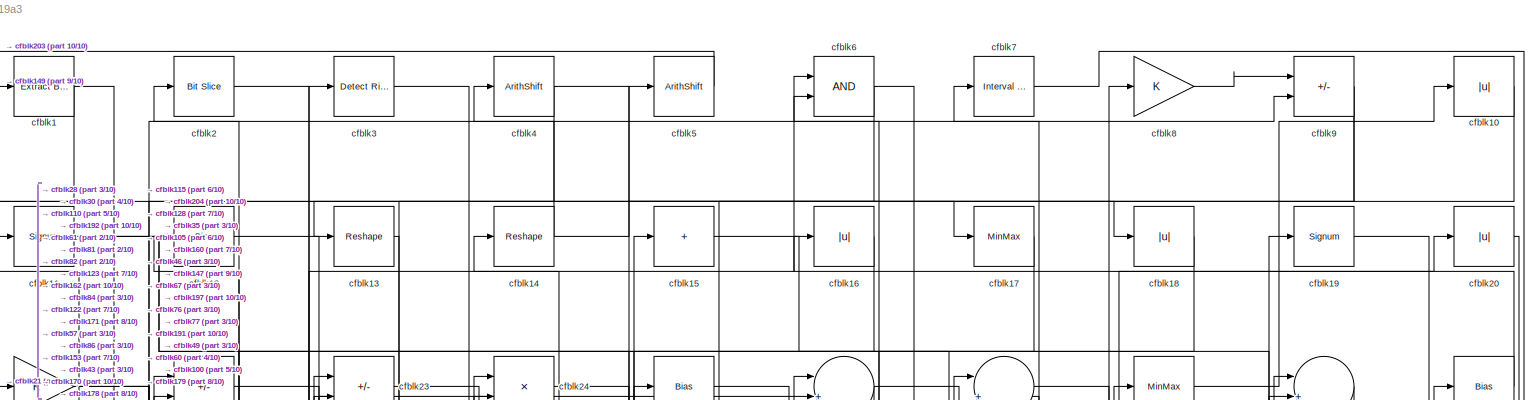
[diagram: root canvas - part 1/10, full width, top band]
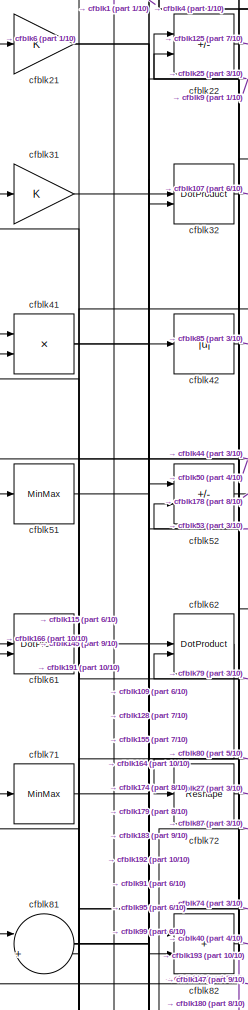
[diagram: root canvas - part 2/10, top left region]
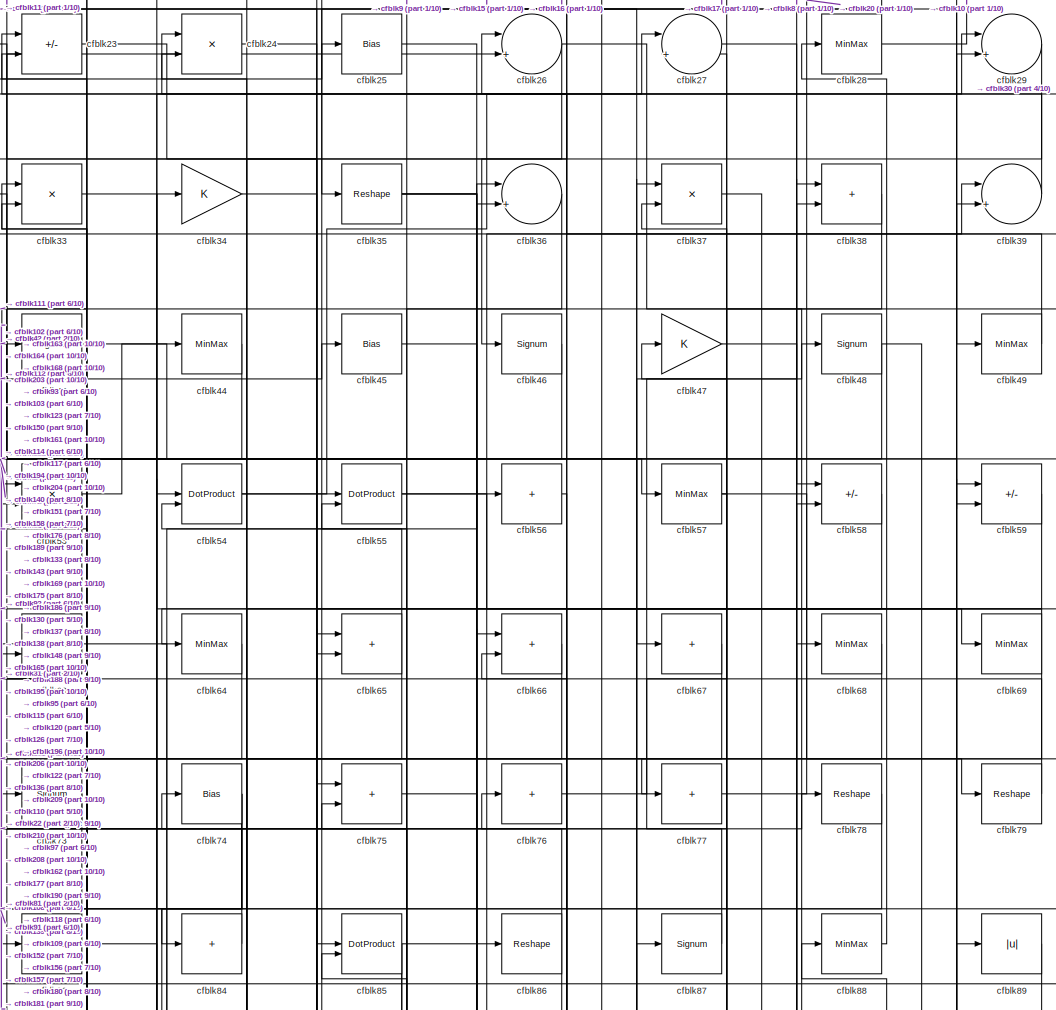
[diagram: root canvas - part 3/10, top center region]
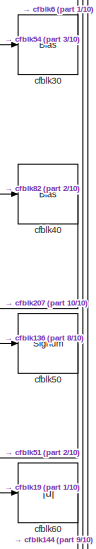
[diagram: root canvas - part 4/10, top right region]
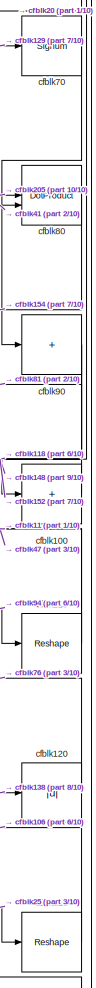
[diagram: root canvas - part 5/10, middle right region]
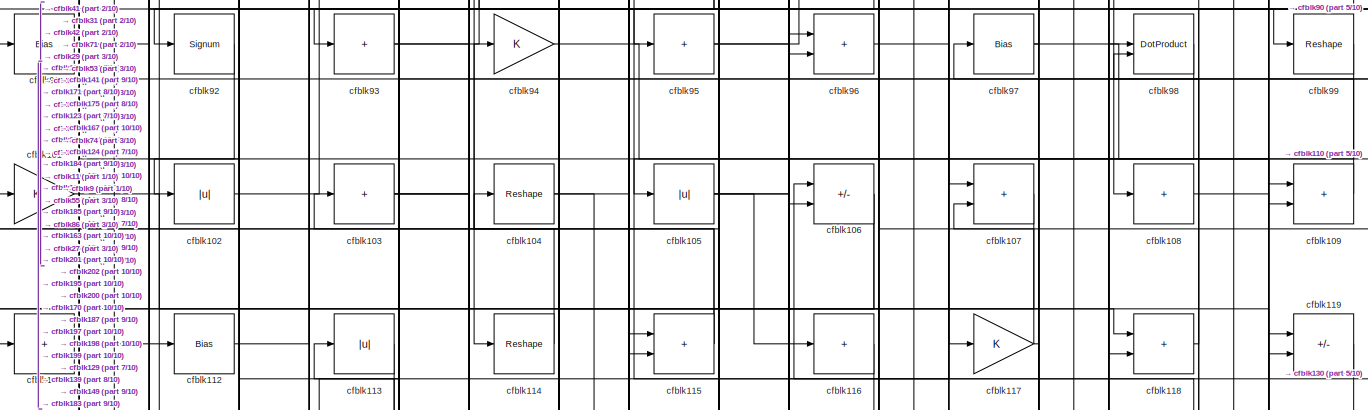
[diagram: root canvas - part 6/10, full width, middle band]
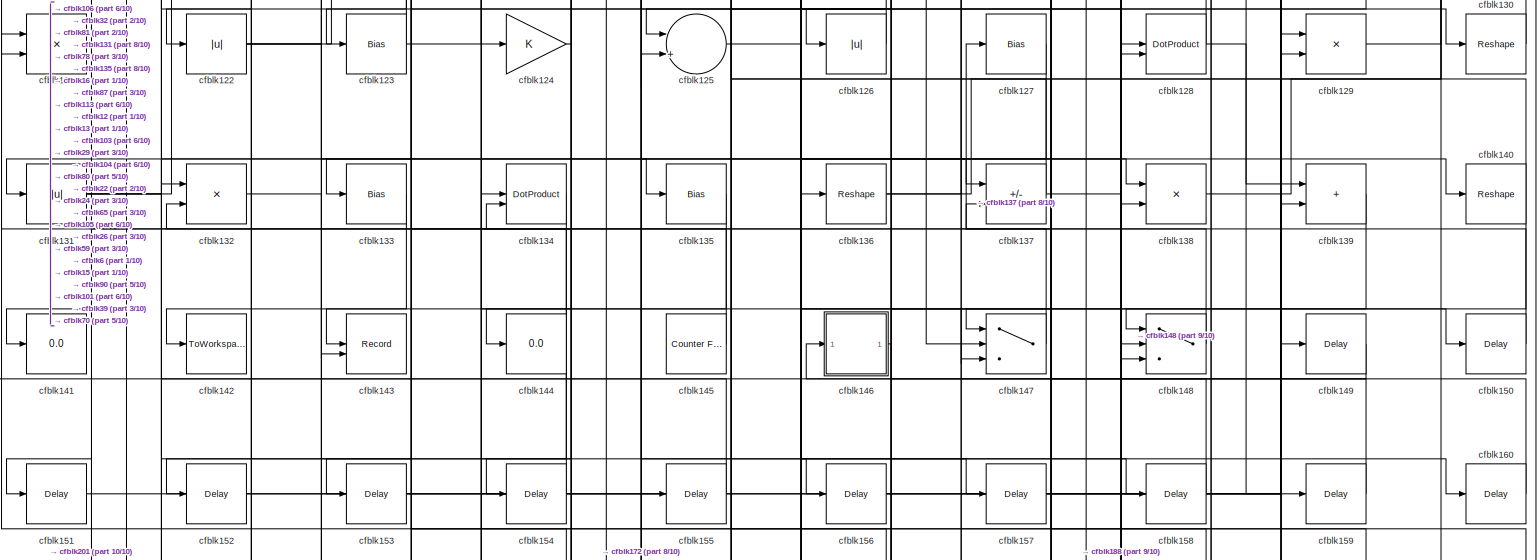
[diagram: root canvas - part 7/10, full width, bottom band]
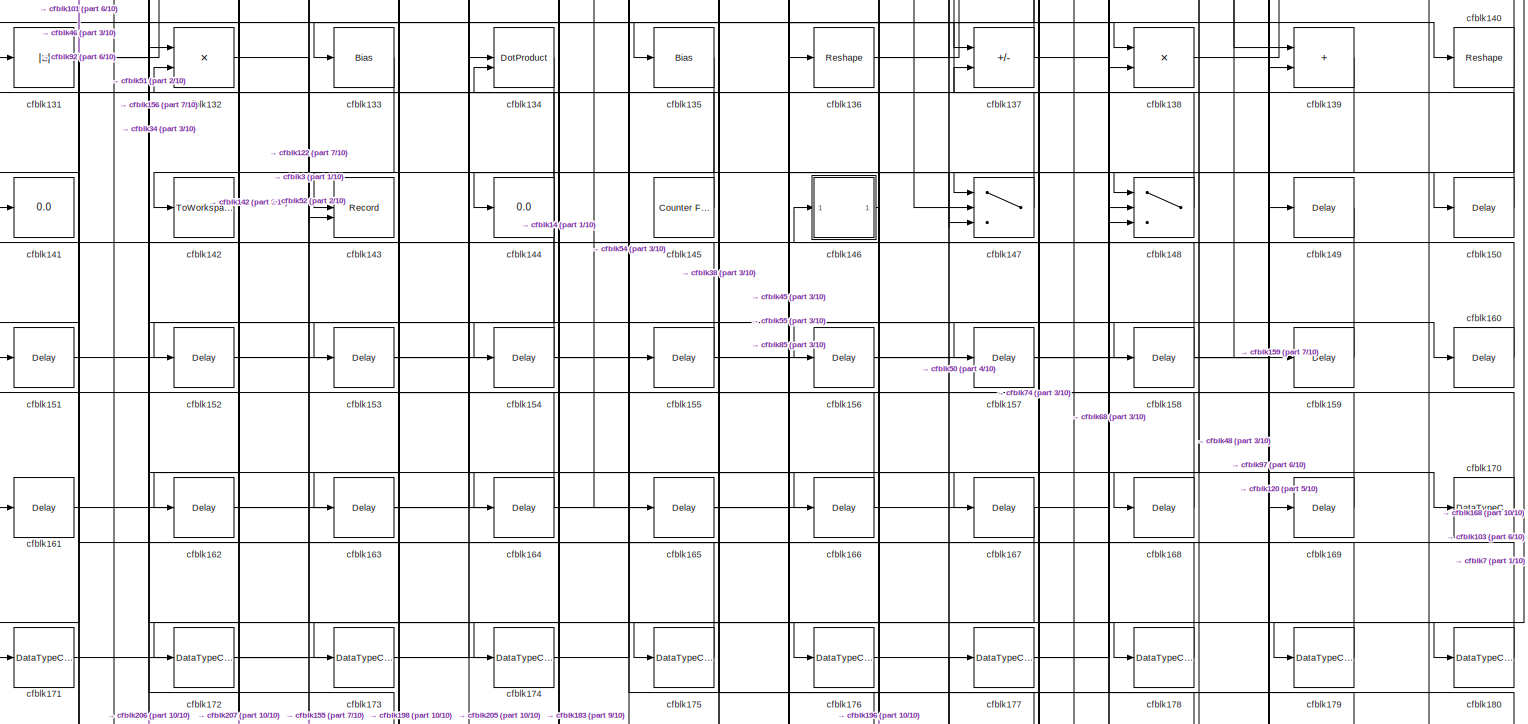
[diagram: root canvas - part 8/10, full width, bottom band]
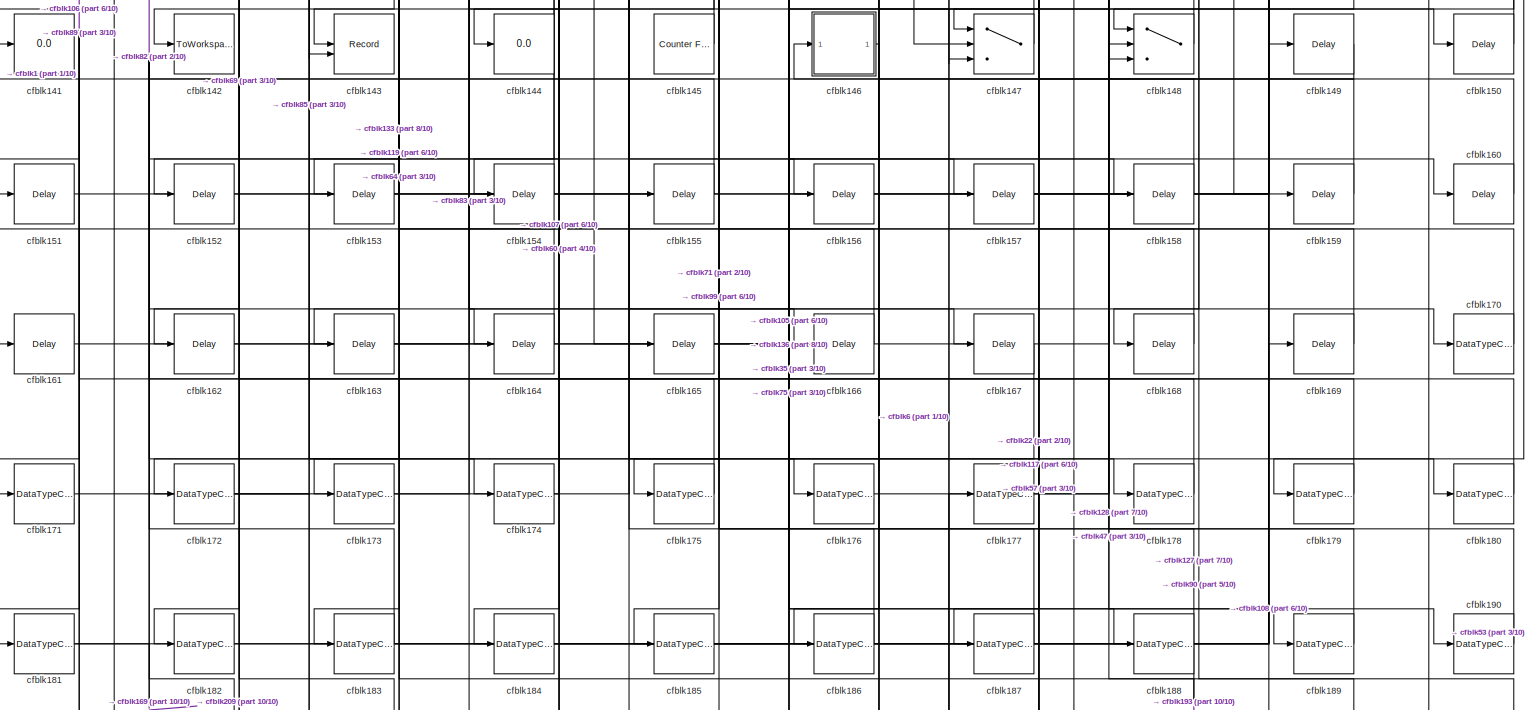
[diagram: root canvas - part 9/10, full width, bottom band]
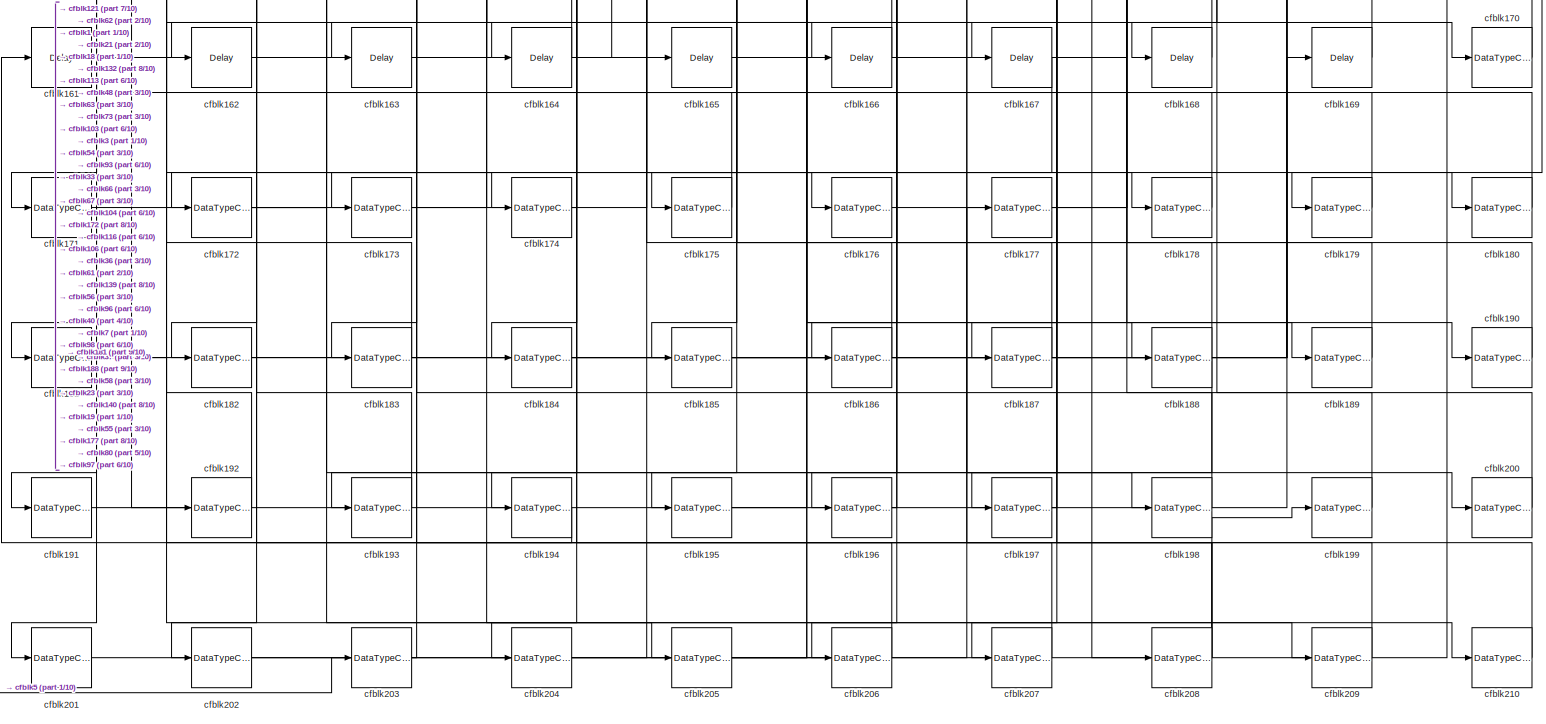
[diagram: root canvas - part 10/10, full width, bottom band]
MODEL slx_aa4a336919a3
KIND model
CONFIG AbsTol = auto
CONFIG EnableMultiTasking = off
CONFIG FixedStep = auto
CONFIG MaxStep = auto
CONFIG MinStep = auto
CONFIG RelTol = 1e-3
CONFIG SampleTimeConstraint = Unconstrained
CONFIG SolverName = VariableStepAuto
CONFIG StartTime = 0.0
CONFIG StopTime = 10.0
BLOCK [Reference] cfblk1  REF=simulink/Logic and Bit
Operations/Extract Bits
  LibrarySourceBlock = hdlsllib/Logic and Bit\nOperations/Extract Bits
  SourceBlock = simulink/Logic and Bit\nOperations/Extract Bits
  SourceType = Extract Bits
BLOCK [Abs] cfblk10
  SaturateOnIntegerOverflow = off
BLOCK [Sum] cfblk100
  IconShape = rectangular
  Inputs = +
BLOCK [Gain] cfblk101
BLOCK [Abs] cfblk102
  SaturateOnIntegerOverflow = off
BLOCK [Sum] cfblk103
  IconShape = rectangular
  Inputs = +
BLOCK [Reshape] cfblk104
BLOCK [Abs] cfblk105
  SaturateOnIntegerOverflow = off
BLOCK [Sum] cfblk106
  IconShape = rectangular
  Inputs = +-
BLOCK [Sum] cfblk107
  IconShape = rectangular
BLOCK [Sum] cfblk108
  IconShape = rectangular
  Inputs = +
BLOCK [Sum] cfblk109
  IconShape = rectangular
BLOCK [Signum] cfblk11
BLOCK [Reshape] cfblk110
BLOCK [Sum] cfblk111
  IconShape = rectangular
  Inputs = +
BLOCK [Bias] cfblk112
  Bias = 0.0
  SaturateOnIntegerOverflow = off
BLOCK [Abs] cfblk113
  SaturateOnIntegerOverflow = off
BLOCK [Reshape] cfblk114
BLOCK [Sum] cfblk115
  IconShape = rectangular
BLOCK [Sum] cfblk116
  IconShape = rectangular
  Inputs = +
BLOCK [Gain] cfblk117
BLOCK [Sum] cfblk118
  IconShape = rectangular
BLOCK [Sum] cfblk119
  IconShape = rectangular
  Inputs = +-
BLOCK [Bias] cfblk12
  Bias = 0.0
  SaturateOnIntegerOverflow = off
BLOCK [Abs] cfblk120
  SaturateOnIntegerOverflow = off
BLOCK [Product] cfblk121
  Inputs = */
  RndMeth = Zero
  SaturateOnIntegerOverflow = on
BLOCK [Abs] cfblk122
  SaturateOnIntegerOverflow = off
BLOCK [Bias] cfblk123
  Bias = 0.0
  SaturateOnIntegerOverflow = off
BLOCK [Gain] cfblk124
BLOCK [Sum] cfblk125
  Inputs = |++
BLOCK [Abs] cfblk126
  SaturateOnIntegerOverflow = off
BLOCK [Bias] cfblk127
  Bias = 0.0
  SaturateOnIntegerOverflow = off
BLOCK [DotProduct] cfblk128
  OutDataTypeStr = Inherit: Inherit via internal rule
BLOCK [Product] cfblk129
  Inputs = */
  RndMeth = Zero
  SaturateOnIntegerOverflow = on
BLOCK [Reshape] cfblk13
BLOCK [Reshape] cfblk130
BLOCK [Abs] cfblk131
  SaturateOnIntegerOverflow = off
BLOCK [Product] cfblk132
  Inputs = */
  RndMeth = Zero
  SaturateOnIntegerOverflow = on
BLOCK [Bias] cfblk133
  Bias = 0.0
  SaturateOnIntegerOverflow = off
BLOCK [DotProduct] cfblk134
  OutDataTypeStr = Inherit: Inherit via internal rule
BLOCK [Bias] cfblk135
  Bias = 0.0
  SaturateOnIntegerOverflow = off
BLOCK [Reshape] cfblk136
BLOCK [Sum] cfblk137
  IconShape = rectangular
  Inputs = +-
BLOCK [Product] cfblk138
  Inputs = */
  RndMeth = Zero
  SaturateOnIntegerOverflow = on
BLOCK [Sum] cfblk139
  IconShape = rectangular
BLOCK [Reshape] cfblk14
BLOCK [Reshape] cfblk140
BLOCK [Display] cfblk141
  Decimation = 1
BLOCK [ToWorkspace] cfblk142
  MaxDataPoints = inf
  SampleTime = -1
  SaveFormat = Timeseries
  VariableName = simout
BLOCK [Record] cfblk143
  CompatibilityTag = XY
  FileSettingsInternal = {"entries":[{"content":{"excelSettings":{"content":{},"type":"Streamout.ExcelSettings"}},"type":"Streamout.FileSettingStorage","uuid":""}],"packageUris":["http:\/\/schema.mathworks.com\/mf0\/streamout_blocks\/R2020a"],"version":"1.0"}
  Layout = [1 1]
  SignalsInternal = {"entries":[{"content":{"signals":[{"content":{"blockPath":[],"dimensions":[1],"domain":"","lineColor":"#a2142f","plots":[1],"port":1,"signalID":1082,"signalName":"XY Graph:1"},"type":"RecordBlkView.Signal","uuid":""},{"content":{"blockPath":[],"dimensions":[1],"domain":"","lineColor":"#139fff","plots":[1],"port":2,"signalID":1085,"signalName":"XY Graph:2"},"type":"RecordBlkView.Signal","uuid":""}...<+146ch>
  VisualizationBindings = {"xyplotplugin":{"info":[{"series":[{"bindingParametersList":[{"parameter":"X-Axis","signalID":1082,"signalName":"XY Graph:1"},{"parameter":"Y-Axis","signalID":1085,"signalName":"XY Graph:2"}],"seriesID":56975}],"subplotID":1}]}}
  st = -1
BLOCK [Display] cfblk144
  Decimation = 1
BLOCK [Reference] cfblk145  REF=hdlsllib/Sources/Counter
Free-Running
  SourceBlock = hdlsllib/Sources/Counter\nFree-Running
  SourceType = Counter Free-Running
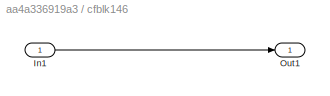
BLOCK [SubSystem] cfblk146
  LibrarySourceBlock = hdlsllib/Ports &\nSubsystems/Subsystem
BLOCK [Inport] cfblk146/In1
BLOCK [Outport] cfblk146/Out1
BLOCK [Switch] cfblk147
  InputSameDT = off
  SaturateOnIntegerOverflow = off
BLOCK [Switch] cfblk148
  InputSameDT = off
  SaturateOnIntegerOverflow = off
BLOCK [Delay] cfblk149
  InputPortMap = u0
  SampleTime = 1
BLOCK [Sum] cfblk15
  IconShape = rectangular
  Inputs = +
BLOCK [Delay] cfblk150
  InputPortMap = u0
  SampleTime = 1
BLOCK [Delay] cfblk151
  InputPortMap = u0
  SampleTime = 1
BLOCK [Delay] cfblk152
  InputPortMap = u0
  SampleTime = 1
BLOCK [Delay] cfblk153
  InputPortMap = u0
  SampleTime = 1
BLOCK [Delay] cfblk154
  InputPortMap = u0
  SampleTime = 1
BLOCK [Delay] cfblk155
  InputPortMap = u0
  SampleTime = 1
BLOCK [Delay] cfblk156
  InputPortMap = u0
  SampleTime = 1
BLOCK [Delay] cfblk157
  InputPortMap = u0
  SampleTime = 1
BLOCK [Delay] cfblk158
  InputPortMap = u0
  SampleTime = 1
BLOCK [Delay] cfblk159
  InputPortMap = u0
  SampleTime = 1
BLOCK [Abs] cfblk16
  SaturateOnIntegerOverflow = off
BLOCK [Delay] cfblk160
  InputPortMap = u0
  SampleTime = 1
BLOCK [Delay] cfblk161
  InputPortMap = u0
  SampleTime = 1
BLOCK [Delay] cfblk162
  InputPortMap = u0
  SampleTime = 1
BLOCK [Delay] cfblk163
  InputPortMap = u0
  SampleTime = 1
BLOCK [Delay] cfblk164
  InputPortMap = u0
  SampleTime = 1
BLOCK [Delay] cfblk165
  InputPortMap = u0
  SampleTime = 1
BLOCK [Delay] cfblk166
  InputPortMap = u0
  SampleTime = 1
BLOCK [Delay] cfblk167
  InputPortMap = u0
  SampleTime = 1
BLOCK [Delay] cfblk168
  InputPortMap = u0
  SampleTime = 1
BLOCK [Delay] cfblk169
  InputPortMap = u0
  SampleTime = 1
BLOCK [MinMax] cfblk17
BLOCK [DataTypeConversion] cfblk170
  OutDataTypeStr = uint8
  RndMeth = Floor
  SaturateOnIntegerOverflow = off
BLOCK [DataTypeConversion] cfblk171
  OutDataTypeStr = uint8
  RndMeth = Floor
  SaturateOnIntegerOverflow = off
BLOCK [DataTypeConversion] cfblk172
  RndMeth = Floor
  SaturateOnIntegerOverflow = off
BLOCK [DataTypeConversion] cfblk173
  OutDataTypeStr = uint8
  RndMeth = Floor
  SaturateOnIntegerOverflow = off
BLOCK [DataTypeConversion] cfblk174
  OutDataTypeStr = uint8
  RndMeth = Floor
  SaturateOnIntegerOverflow = off
BLOCK [DataTypeConversion] cfblk175
  OutDataTypeStr = uint8
  RndMeth = Floor
  SaturateOnIntegerOverflow = off
BLOCK [DataTypeConversion] cfblk176
  OutDataTypeStr = uint8
  RndMeth = Floor
  SaturateOnIntegerOverflow = off
BLOCK [DataTypeConversion] cfblk177
  OutDataTypeStr = uint8
  RndMeth = Floor
  SaturateOnIntegerOverflow = off
BLOCK [DataTypeConversion] cfblk178
  OutDataTypeStr = uint8
  RndMeth = Floor
  SaturateOnIntegerOverflow = off
BLOCK [DataTypeConversion] cfblk179
  OutDataTypeStr = uint8
  RndMeth = Floor
  SaturateOnIntegerOverflow = off
BLOCK [Abs] cfblk18
  SaturateOnIntegerOverflow = off
BLOCK [DataTypeConversion] cfblk180
  OutDataTypeStr = uint8
  RndMeth = Floor
  SaturateOnIntegerOverflow = off
BLOCK [DataTypeConversion] cfblk181
  RndMeth = Floor
  SaturateOnIntegerOverflow = off
BLOCK [DataTypeConversion] cfblk182
  OutDataTypeStr = uint8
  RndMeth = Floor
  SaturateOnIntegerOverflow = off
BLOCK [DataTypeConversion] cfblk183
  RndMeth = Floor
  SaturateOnIntegerOverflow = off
BLOCK [DataTypeConversion] cfblk184
  OutDataTypeStr = uint8
  RndMeth = Floor
  SaturateOnIntegerOverflow = off
BLOCK [DataTypeConversion] cfblk185
  OutDataTypeStr = uint8
  RndMeth = Floor
  SaturateOnIntegerOverflow = off
BLOCK [DataTypeConversion] cfblk186
  OutDataTypeStr = uint8
  RndMeth = Floor
  SaturateOnIntegerOverflow = off
BLOCK [DataTypeConversion] cfblk187
  OutDataTypeStr = uint8
  RndMeth = Floor
  SaturateOnIntegerOverflow = off
BLOCK [DataTypeConversion] cfblk188
  RndMeth = Floor
  SaturateOnIntegerOverflow = off
BLOCK [DataTypeConversion] cfblk189
  OutDataTypeStr = uint8
  RndMeth = Floor
  SaturateOnIntegerOverflow = off
BLOCK [Signum] cfblk19
BLOCK [DataTypeConversion] cfblk190
  OutDataTypeStr = uint8
  RndMeth = Floor
  SaturateOnIntegerOverflow = off
BLOCK [DataTypeConversion] cfblk191
  OutDataTypeStr = uint8
  RndMeth = Floor
  SaturateOnIntegerOverflow = off
BLOCK [DataTypeConversion] cfblk192
  OutDataTypeStr = uint8
  RndMeth = Floor
  SaturateOnIntegerOverflow = off
BLOCK [DataTypeConversion] cfblk193
  OutDataTypeStr = uint8
  RndMeth = Floor
  SaturateOnIntegerOverflow = off
BLOCK [DataTypeConversion] cfblk194
  OutDataTypeStr = uint8
  RndMeth = Floor
  SaturateOnIntegerOverflow = off
BLOCK [DataTypeConversion] cfblk195
  OutDataTypeStr = uint8
  RndMeth = Floor
  SaturateOnIntegerOverflow = off
BLOCK [DataTypeConversion] cfblk196
  OutDataTypeStr = uint8
  RndMeth = Floor
  SaturateOnIntegerOverflow = off
BLOCK [DataTypeConversion] cfblk197
  OutDataTypeStr = uint8
  RndMeth = Floor
  SaturateOnIntegerOverflow = off
BLOCK [DataTypeConversion] cfblk198
  OutDataTypeStr = uint8
  RndMeth = Floor
  SaturateOnIntegerOverflow = off
BLOCK [DataTypeConversion] cfblk199
  OutDataTypeStr = uint8
  RndMeth = Floor
  SaturateOnIntegerOverflow = off
BLOCK [Reference] cfblk2  REF=hdlsllib/Logic and Bit
Operations/Bit Slice
  SourceBlock = hdlsllib/Logic and Bit\nOperations/Bit Slice
  SourceType = Bit Slice
BLOCK [Abs] cfblk20
  SaturateOnIntegerOverflow = off
BLOCK [DataTypeConversion] cfblk200
  OutDataTypeStr = uint8
  RndMeth = Floor
  SaturateOnIntegerOverflow = off
BLOCK [DataTypeConversion] cfblk201
  OutDataTypeStr = uint8
  RndMeth = Floor
  SaturateOnIntegerOverflow = off
BLOCK [DataTypeConversion] cfblk202
  OutDataTypeStr = uint8
  RndMeth = Floor
  SaturateOnIntegerOverflow = off
BLOCK [DataTypeConversion] cfblk203
  OutDataTypeStr = uint8
  RndMeth = Floor
  SaturateOnIntegerOverflow = off
BLOCK [DataTypeConversion] cfblk204
  OutDataTypeStr = uint8
  RndMeth = Floor
  SaturateOnIntegerOverflow = off
BLOCK [DataTypeConversion] cfblk205
  RndMeth = Floor
  SaturateOnIntegerOverflow = off
BLOCK [DataTypeConversion] cfblk206
  OutDataTypeStr = uint8
  RndMeth = Floor
  SaturateOnIntegerOverflow = off
BLOCK [DataTypeConversion] cfblk207
  OutDataTypeStr = uint8
  RndMeth = Floor
  SaturateOnIntegerOverflow = off
BLOCK [DataTypeConversion] cfblk208
  RndMeth = Floor
  SaturateOnIntegerOverflow = off
BLOCK [DataTypeConversion] cfblk209
  OutDataTypeStr = uint8
  RndMeth = Floor
  SaturateOnIntegerOverflow = off
BLOCK [Gain] cfblk21
BLOCK [DataTypeConversion] cfblk210
  OutDataTypeStr = uint8
  RndMeth = Floor
  SaturateOnIntegerOverflow = off
BLOCK [Sum] cfblk22
  IconShape = rectangular
  Inputs = +-
BLOCK [Sum] cfblk23
  IconShape = rectangular
  Inputs = +-
BLOCK [Product] cfblk24
  Inputs = */
  RndMeth = Zero
  SaturateOnIntegerOverflow = on
BLOCK [Bias] cfblk25
  Bias = 0.0
  SaturateOnIntegerOverflow = off
BLOCK [Sum] cfblk26
  Inputs = |++
BLOCK [Sum] cfblk27
  Inputs = |++
BLOCK [MinMax] cfblk28
BLOCK [Sum] cfblk29
  Inputs = |++
BLOCK [Reference] cfblk3  REF=hdlsllib/Logic and Bit
Operations/Detect Rise
Positive
  SourceBlock = hdlsllib/Logic and Bit\nOperations/Detect Rise\nPositive
  SourceType = Detect Rise Positive
BLOCK [Bias] cfblk30
  Bias = 0.0
  SaturateOnIntegerOverflow = off
BLOCK [Gain] cfblk31
BLOCK [DotProduct] cfblk32
  OutDataTypeStr = Inherit: Inherit via internal rule
BLOCK [Product] cfblk33
  Inputs = */
  RndMeth = Zero
  SaturateOnIntegerOverflow = on
BLOCK [Gain] cfblk34
BLOCK [Reshape] cfblk35
BLOCK [Sum] cfblk36
  Inputs = |++
BLOCK [Product] cfblk37
  Inputs = */
  RndMeth = Zero
  SaturateOnIntegerOverflow = on
BLOCK [Sum] cfblk38
  IconShape = rectangular
BLOCK [Sum] cfblk39
  Inputs = |++
BLOCK [ArithShift] cfblk4
  BitShiftNumber = 8
  InputPortMap = u0
BLOCK [Bias] cfblk40
  Bias = 0.0
  SaturateOnIntegerOverflow = off
BLOCK [Product] cfblk41
  Inputs = */
  RndMeth = Zero
  SaturateOnIntegerOverflow = on
BLOCK [Abs] cfblk42
  SaturateOnIntegerOverflow = off
BLOCK [Signum] cfblk43
BLOCK [MinMax] cfblk44
BLOCK [Bias] cfblk45
  Bias = 0.0
  SaturateOnIntegerOverflow = off
BLOCK [Signum] cfblk46
BLOCK [Gain] cfblk47
BLOCK [Signum] cfblk48
BLOCK [MinMax] cfblk49
BLOCK [ArithShift] cfblk5
  BitShiftNumber = 8
  InputPortMap = u0
BLOCK [Signum] cfblk50
BLOCK [MinMax] cfblk51
BLOCK [Sum] cfblk52
  IconShape = rectangular
  Inputs = +-
BLOCK [Product] cfblk53
  Inputs = */
  RndMeth = Zero
  SaturateOnIntegerOverflow = on
BLOCK [DotProduct] cfblk54
  OutDataTypeStr = Inherit: Inherit via internal rule
BLOCK [DotProduct] cfblk55
  OutDataTypeStr = Inherit: Inherit via internal rule
BLOCK [Sum] cfblk56
  IconShape = rectangular
  Inputs = +
BLOCK [MinMax] cfblk57
BLOCK [Sum] cfblk58
  IconShape = rectangular
  Inputs = +-
BLOCK [Sum] cfblk59
  IconShape = rectangular
  Inputs = +-
BLOCK [Logic] cfblk6
  AllPortsSameDT = off
  OutDataTypeStr = boolean
BLOCK [Abs] cfblk60
  SaturateOnIntegerOverflow = off
BLOCK [DotProduct] cfblk61
  OutDataTypeStr = Inherit: Inherit via internal rule
BLOCK [DotProduct] cfblk62
  OutDataTypeStr = Inherit: Inherit via internal rule
BLOCK [DotProduct] cfblk63
  OutDataTypeStr = Inherit: Inherit via internal rule
BLOCK [MinMax] cfblk64
BLOCK [Sum] cfblk65
  IconShape = rectangular
BLOCK [Sum] cfblk66
  IconShape = rectangular
BLOCK [Sum] cfblk67
  IconShape = rectangular
  Inputs = +
BLOCK [MinMax] cfblk68
BLOCK [MinMax] cfblk69
BLOCK [Reference] cfblk7  REF=hdlsllib/Logic and Bit
Operations/Interval Test
  SourceBlock = hdlsllib/Logic and Bit\nOperations/Interval Test
  SourceType = Interval Test
BLOCK [Signum] cfblk70
BLOCK [MinMax] cfblk71
BLOCK [Reshape] cfblk72
BLOCK [Signum] cfblk73
BLOCK [Bias] cfblk74
  Bias = 0.0
  SaturateOnIntegerOverflow = off
BLOCK [Sum] cfblk75
  IconShape = rectangular
BLOCK [Sum] cfblk76
  IconShape = rectangular
  Inputs = +
BLOCK [Sum] cfblk77
  IconShape = rectangular
  Inputs = +
BLOCK [Reshape] cfblk78
BLOCK [Reshape] cfblk79
BLOCK [Gain] cfblk8
BLOCK [DotProduct] cfblk80
  OutDataTypeStr = Inherit: Inherit via internal rule
BLOCK [Sum] cfblk81
  Inputs = |++
BLOCK [Sum] cfblk82
  IconShape = rectangular
BLOCK [MinMax] cfblk83
BLOCK [Sum] cfblk84
  IconShape = rectangular
  Inputs = +
BLOCK [DotProduct] cfblk85
  OutDataTypeStr = Inherit: Inherit via internal rule
BLOCK [Reshape] cfblk86
BLOCK [Signum] cfblk87
BLOCK [MinMax] cfblk88
BLOCK [Abs] cfblk89
  SaturateOnIntegerOverflow = off
BLOCK [Sum] cfblk9
  IconShape = rectangular
  Inputs = +-
BLOCK [Sum] cfblk90
  IconShape = rectangular
  Inputs = +
BLOCK [Bias] cfblk91
  Bias = 0.0
  SaturateOnIntegerOverflow = off
BLOCK [Signum] cfblk92
BLOCK [Sum] cfblk93
  IconShape = rectangular
  Inputs = +
BLOCK [Gain] cfblk94
BLOCK [Sum] cfblk95
  IconShape = rectangular
  Inputs = +
BLOCK [Sum] cfblk96
  IconShape = rectangular
BLOCK [Bias] cfblk97
  Bias = 0.0
  SaturateOnIntegerOverflow = off
BLOCK [DotProduct] cfblk98
  OutDataTypeStr = Inherit: Inherit via internal rule
BLOCK [Reshape] cfblk99
LINE cfblk100:1 -> cfblk81:1
LINE cfblk101:1 -> cfblk129:2
LINE cfblk102:1 -> cfblk26:2
NET cfblk103:1 -> cfblk124:1, cfblk167:1, cfblk78:1
NET cfblk104:1 -> cfblk165:1, cfblk166:1
NET cfblk105:1 -> cfblk116:1, cfblk160:1, cfblk189:1
NET cfblk106:1 -> cfblk121:2, cfblk141:1
LINE cfblk107:1 -> cfblk184:1
LINE cfblk108:1 -> cfblk149:1
LINE cfblk109:1 -> cfblk33:1
LINE cfblk10:1 -> cfblk13:1
NET cfblk110:1 -> cfblk11:1, cfblk47:1
LINE cfblk111:1 -> cfblk112:1
LINE cfblk112:1 -> cfblk45:1
LINE cfblk113:1 -> cfblk123:1
LINE cfblk114:1 -> cfblk94:1
NET cfblk115:1 -> cfblk41:1, cfblk41:2
LINE cfblk116:1 -> cfblk195:1
NET cfblk117:1 -> cfblk107:2, cfblk187:1
LINE cfblk118:1 -> cfblk88:1
LINE cfblk119:1 -> cfblk183:1
NET cfblk11:1 -> cfblk115:1, cfblk67:1
LINE cfblk120:1 -> cfblk76:1
LINE cfblk121:1 -> cfblk201:1
NET cfblk122:1 -> cfblk135:1, cfblk16:1, cfblk87:1
NET cfblk123:1 -> cfblk12:1, cfblk29:1
LINE cfblk124:1 -> cfblk104:1
LINE cfblk125:1 -> cfblk157:1
LINE cfblk126:1 -> cfblk125:1
LINE cfblk127:1 -> cfblk151:1
NET cfblk128:1 -> cfblk159:1, cfblk15:1
LINE cfblk129:1 -> cfblk70:1
LINE cfblk12:1 -> cfblk86:1
LINE cfblk130:1 -> cfblk106:1
NET cfblk131:1 -> cfblk138:1, cfblk156:1, cfblk34:1
LINE cfblk132:1 -> cfblk205:1
LINE cfblk133:1 -> cfblk142:1
LINE cfblk134:1 -> cfblk172:1
LINE cfblk135:1 -> cfblk173:1
NET cfblk136:1 -> cfblk48:1, cfblk50:1
NET cfblk137:1 -> cfblk68:1, cfblk74:1
LINE cfblk138:1 -> cfblk120:1
LINE cfblk139:1 -> cfblk196:1
LINE cfblk13:1 -> cfblk153:1
NET cfblk140:1 -> cfblk103:1, cfblk168:1
LINE cfblk145:1 -> cfblk71:1
LINE cfblk146/In1:1 -> cfblk146/Out1:1
LINE cfblk146:1 -> cfblk186:1
LINE cfblk147:1 -> cfblk22:2
LINE cfblk148:1 -> cfblk127:1
LINE cfblk149:1 -> cfblk1:1
NET cfblk14:1 -> cfblk18:1, cfblk4:1
LINE cfblk150:1 -> cfblk53:2
LINE cfblk151:1 -> cfblk65:1
LINE cfblk152:1 -> cfblk29:2
LINE cfblk153:1 -> cfblk129:1
LINE cfblk154:1 -> cfblk121:1
LINE cfblk155:1 -> cfblk32:1
LINE cfblk156:1 -> cfblk39:2
LINE cfblk157:1 -> cfblk59:1
LINE cfblk158:1 -> cfblk26:1
LINE cfblk159:1 -> cfblk137:2
LINE cfblk15:1 -> cfblk49:1
LINE cfblk160:1 -> cfblk6:2
LINE cfblk161:1 -> cfblk54:1
LINE cfblk162:1 -> cfblk58:2
LINE cfblk163:1 -> cfblk106:2
LINE cfblk164:1 -> cfblk33:2
LINE cfblk165:1 -> cfblk36:1
LINE cfblk166:1 -> cfblk61:1
LINE cfblk167:1 -> cfblk202:1
LINE cfblk168:1 -> cfblk23:2
LINE cfblk169:1 -> cfblk55:2
LINE cfblk16:1 -> cfblk35:1
LINE cfblk170:1 -> cfblk97:1
LINE cfblk171:1 -> cfblk3:1
NET cfblk172:1 -> cfblk155:1, cfblk198:1
LINE cfblk173:1 -> cfblk134:1
LINE cfblk174:1 -> cfblk134:2
LINE cfblk175:1 -> cfblk101:1
LINE cfblk176:1 -> cfblk38:1
LINE cfblk177:1 -> cfblk38:2
LINE cfblk178:1 -> cfblk14:1
LINE cfblk179:1 -> cfblk52:1
LINE cfblk17:1 -> cfblk46:1
LINE cfblk180:1 -> cfblk52:2
NET cfblk181:1 -> cfblk169:1, cfblk209:1
LINE cfblk182:1 -> cfblk89:1
NET cfblk183:1 -> cfblk136:1, cfblk82:1
LINE cfblk184:1 -> cfblk119:1
LINE cfblk185:1 -> cfblk119:2
LINE cfblk186:1 -> cfblk85:2
LINE cfblk187:1 -> cfblk146:1
NET cfblk188:1 -> cfblk128:1, cfblk193:1
LINE cfblk189:1 -> cfblk75:1
LINE cfblk18:1 -> cfblk162:1
LINE cfblk190:1 -> cfblk75:2
LINE cfblk191:1 -> cfblk19:1
LINE cfblk192:1 -> cfblk62:1
LINE cfblk193:1 -> cfblk62:2
LINE cfblk194:1 -> cfblk161:1
LINE cfblk195:1 -> cfblk66:1
LINE cfblk196:1 -> cfblk66:2
LINE cfblk197:1 -> cfblk7:1
LINE cfblk198:1 -> cfblk98:1
LINE cfblk199:1 -> cfblk98:2
LINE cfblk19:1 -> cfblk60:1
NET cfblk1:1 -> cfblk192:1, cfblk61:2
LINE cfblk200:1 -> cfblk113:1
LINE cfblk201:1 -> cfblk96:1
LINE cfblk202:1 -> cfblk96:2
LINE cfblk203:1 -> cfblk63:2
LINE cfblk204:1 -> cfblk5:1
NET cfblk205:1 -> cfblk177:1, cfblk80:1
LINE cfblk206:1 -> cfblk132:1
LINE cfblk207:1 -> cfblk132:2
NET cfblk208:1 -> cfblk199:1, cfblk54:2, cfblk73:1
LINE cfblk209:1 -> cfblk37:1
LINE cfblk20:1 -> cfblk100:1
LINE cfblk210:1 -> cfblk37:2
NET cfblk21:1 -> cfblk164:1, cfblk32:2
LINE cfblk22:1 -> cfblk125:2
LINE cfblk23:1 -> cfblk55:1
LINE cfblk24:1 -> cfblk158:1
LINE cfblk25:1 -> cfblk130:1
NET cfblk26:1 -> cfblk108:1, cfblk84:1
LINE cfblk27:1 -> cfblk58:1
LINE cfblk28:1 -> cfblk10:1
LINE cfblk29:1 -> cfblk102:1
LINE cfblk2:1 -> cfblk57:1
LINE cfblk30:1 -> cfblk6:1
LINE cfblk31:1 -> cfblk95:1
LINE cfblk32:1 -> cfblk107:1
LINE cfblk33:1 -> cfblk69:1
LINE cfblk34:1 -> cfblk176:1
NET cfblk35:1 -> cfblk147:3, cfblk148:3, cfblk56:1
LINE cfblk36:1 -> cfblk111:1
LINE cfblk37:1 -> cfblk208:1
LINE cfblk38:1 -> cfblk175:1
LINE cfblk39:1 -> cfblk23:1
LINE cfblk3:1 -> cfblk170:1
LINE cfblk40:1 -> cfblk207:1
NET cfblk41:1 -> cfblk80:2, cfblk99:1
LINE cfblk42:1 -> cfblk85:1
LINE cfblk43:1 -> cfblk59:2
LINE cfblk44:1 -> cfblk72:1
LINE cfblk45:1 -> cfblk137:1
LINE cfblk46:1 -> cfblk131:1
LINE cfblk47:1 -> cfblk190:1
NET cfblk48:1 -> cfblk139:1, cfblk163:1
LINE cfblk49:1 -> cfblk24:1
NET cfblk4:1 -> cfblk17:1, cfblk82:2
LINE cfblk50:1 -> cfblk51:1
LINE cfblk51:1 -> cfblk174:1
LINE cfblk52:1 -> cfblk178:1
NET cfblk53:1 -> cfblk44:1, cfblk92:1
NET cfblk54:1 -> cfblk140:1, cfblk30:1
NET cfblk55:1 -> cfblk109:1, cfblk180:1
LINE cfblk56:1 -> cfblk206:1
NET cfblk57:1 -> cfblk147:1, cfblk79:1
LINE cfblk58:1 -> cfblk65:2
LINE cfblk59:1 -> cfblk126:1
LINE cfblk5:1 -> cfblk203:1
LINE cfblk60:1 -> cfblk144:1
LINE cfblk61:1 -> cfblk53:1
LINE cfblk62:1 -> cfblk191:1
LINE cfblk63:1 -> cfblk117:1
LINE cfblk64:1 -> cfblk143:1
NET cfblk65:1 -> cfblk24:2, cfblk93:1
LINE cfblk66:1 -> cfblk194:1
LINE cfblk67:1 -> cfblk204:1
LINE cfblk68:1 -> cfblk77:1
NET cfblk69:1 -> cfblk182:1, cfblk64:1
NET cfblk6:1 -> cfblk147:2, cfblk21:1
LINE cfblk70:1 -> cfblk90:1
LINE cfblk71:1 -> cfblk109:2
LINE cfblk72:1 -> cfblk27:1
LINE cfblk73:1 -> cfblk83:1
NET cfblk74:1 -> cfblk114:1, cfblk81:2, cfblk91:1
LINE cfblk75:1 -> cfblk188:1
LINE cfblk76:1 -> cfblk8:1
LINE cfblk77:1 -> cfblk20:1
LINE cfblk78:1 -> cfblk122:1
LINE cfblk79:1 -> cfblk31:1
LINE cfblk7:1 -> cfblk179:1
LINE cfblk80:1 -> cfblk154:1
NET cfblk81:1 -> cfblk128:2, cfblk25:1, cfblk9:2
LINE cfblk82:1 -> cfblk40:1
LINE cfblk83:1 -> cfblk150:1
LINE cfblk84:1 -> cfblk2:1
NET cfblk85:1 -> cfblk133:1, cfblk138:2, cfblk143:2
NET cfblk86:1 -> cfblk115:2, cfblk63:1
LINE cfblk87:1 -> cfblk22:1
LINE cfblk88:1 -> cfblk28:1
LINE cfblk89:1 -> cfblk181:1
LINE cfblk8:1 -> cfblk9:1
NET cfblk90:1 -> cfblk118:2, cfblk148:1, cfblk148:2, cfblk152:1
LINE cfblk91:1 -> cfblk42:1
LINE cfblk92:1 -> cfblk171:1
NET cfblk93:1 -> cfblk210:1, cfblk36:2
LINE cfblk94:1 -> cfblk110:1
NET cfblk95:1 -> cfblk118:1, cfblk39:1
LINE cfblk96:1 -> cfblk200:1
NET cfblk97:1 -> cfblk139:2, cfblk27:2
LINE cfblk98:1 -> cfblk197:1
LINE cfblk99:1 -> cfblk185:1
NET cfblk9:1 -> cfblk105:1, cfblk43:1
note: NET lines group one-source signal fan-out (src -> all destinations, sorted); 1:1 wires keep LINE
